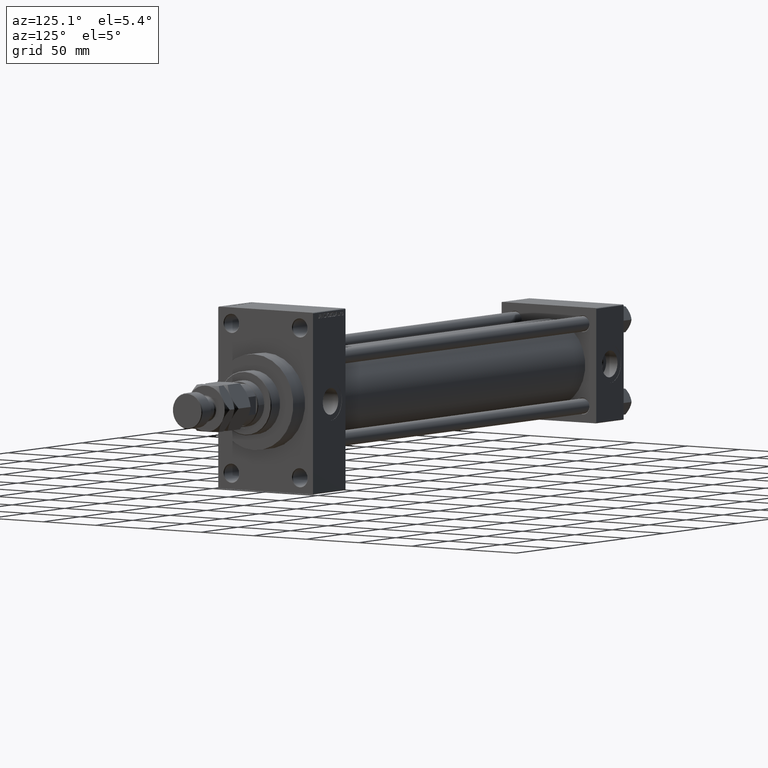
[diagram: clean part render]
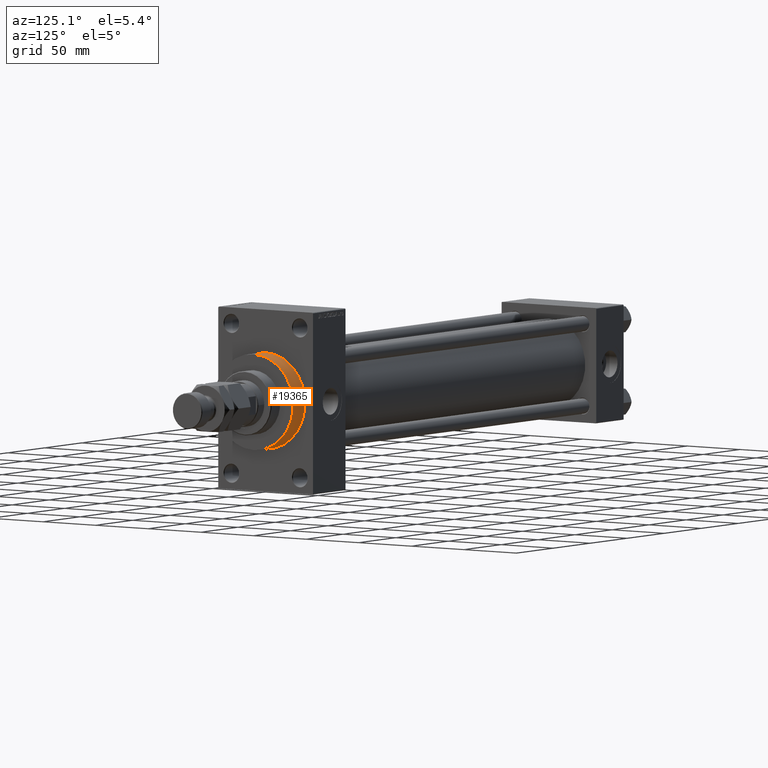
[diagram: same view with one face highlighted and labeled with its STEP entity id]
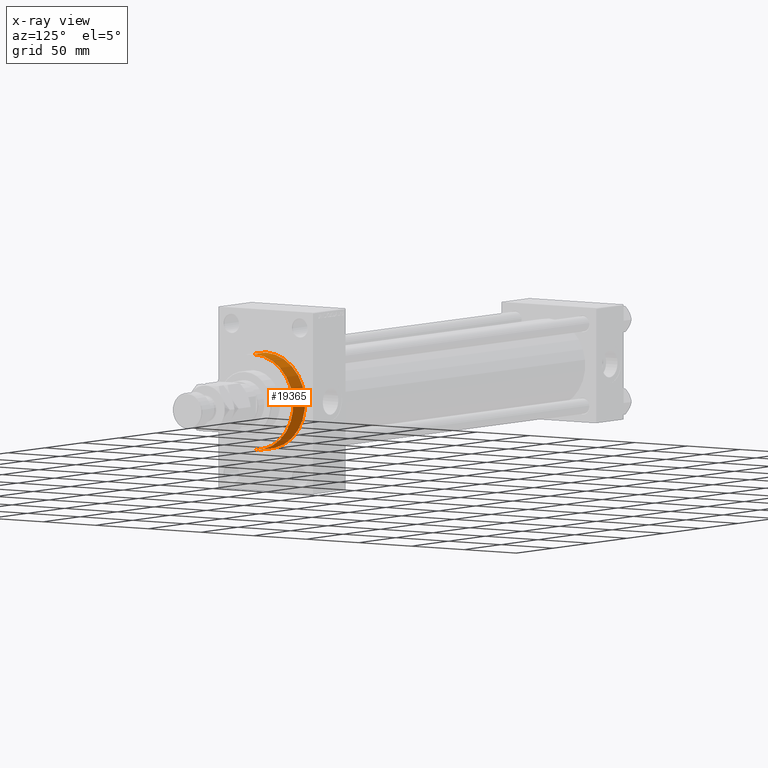
[diagram: x-ray of the same camera — body ghosted, the highlighted face saturated]
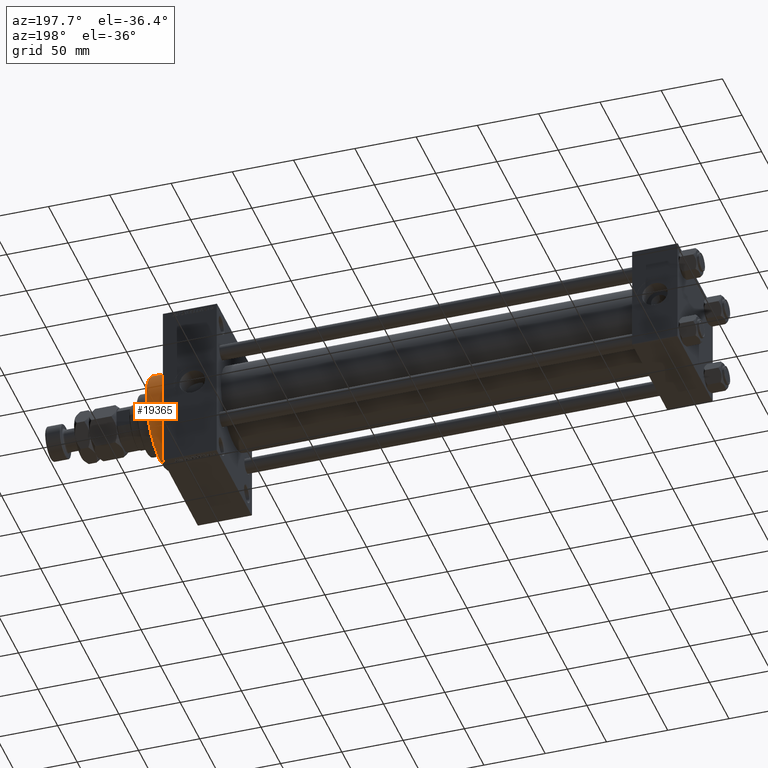
[diagram: same view with one face highlighted and labeled with its STEP entity id]
A machine part, auxiliary view. The second image highlights one B-rep face of the part: STEP entity #19365.
The next image is the same camera in x-ray: the body ghosted, the highlighted face saturated — about 0% of this face is hidden behind the body in this view.
A second angle (auxiliary view) of the same face is appended — the face is thin or edge-on in the first view.
In plain terms, the highlighted cylindrical surface (partial cylindrical patch) has radius 37.5 mm, axis along (-1, -0, -0).
Its self-contained STEP definition (entity closure, byte-faithful):
#227 = DIRECTION ( 'NONE',  ( 1.000000000000000000, 0.000000000000000000, 0.000000000000000000 ) ) ;
#685 = EDGE_CURVE ( 'NONE', #32410, #24427, #22771, .T. ) ;
#891 = EDGE_CURVE ( 'NONE', #32410, #38043, #3953, .T. ) ;
#1475 = ORIENTED_EDGE ( 'NONE', *, *, #13464, .T. ) ;
#3953 = LINE ( 'NONE', #48041, #17058 ) ;
#4077 = CYLINDRICAL_SURFACE ( 'NONE', #50398, 37.50000000000000711 ) ;
#4306 = DIRECTION ( 'NONE',  ( 1.000000000000000000, 0.000000000000000000, 0.000000000000000000 ) ) ;
#8182 = CARTESIAN_POINT ( 'NONE',  ( 436.0000000000000000, 0.000000000000000000, 0.000000000000000000 ) ) ;
#8702 = CARTESIAN_POINT ( 'NONE',  ( 420.0000000000000000, 0.000000000000000000, 37.50000000000000711 ) ) ;
#12595 = DIRECTION ( 'NONE',  ( 0.000000000000000000, 0.000000000000000000, 1.000000000000000000 ) ) ;
#13464 = EDGE_CURVE ( 'NONE', #38043, #21650, #29747, .T. ) ;
#13615 = DIRECTION ( 'NONE',  ( -1.000000000000000000, -0.000000000000000000, -0.000000000000000000 ) ) ;
#15673 = FACE_OUTER_BOUND ( 'NONE', #50596, .T. ) ;
#17058 = VECTOR ( 'NONE', #40053, 1000.000000000000000 ) ;
#19365 = ADVANCED_FACE ( 'NONE', ( #15673 ), #4077, .T. ) ;
#19798 = CARTESIAN_POINT ( 'NONE',  ( 436.0000000000000000, 0.000000000000000000, 0.000000000000000000 ) ) ;
#21603 = LINE ( 'NONE', #49929, #48808 ) ;
#21650 = VERTEX_POINT ( 'NONE', #8702 ) ;
#22771 = CIRCLE ( 'NONE', #35163, 37.50000000000000711 ) ;
#24427 = VERTEX_POINT ( 'NONE', #37812 ) ;
#29747 = CIRCLE ( 'NONE', #41268, 37.50000000000000711 ) ;
#32410 = VERTEX_POINT ( 'NONE', #43991 ) ;
#35163 = AXIS2_PLACEMENT_3D ( 'NONE', #8182, #4306, #35779 ) ;
#35552 = DIRECTION ( 'NONE',  ( -1.000000000000000000, -0.000000000000000000, -0.000000000000000000 ) ) ;
#35779 = DIRECTION ( 'NONE',  ( 0.000000000000000000, 0.000000000000000000, -1.000000000000000000 ) ) ;
#35790 = ORIENTED_EDGE ( 'NONE', *, *, #891, .T. ) ;
#36338 = DIRECTION ( 'NONE',  ( 0.000000000000000000, 0.000000000000000000, -1.000000000000000000 ) ) ;
#37307 = ORIENTED_EDGE ( 'NONE', *, *, #685, .F. ) ;
#37812 = CARTESIAN_POINT ( 'NONE',  ( 436.0000000000000000, 0.000000000000000000, 37.50000000000000711 ) ) ;
#38043 = VERTEX_POINT ( 'NONE', #44280 ) ;
#40053 = DIRECTION ( 'NONE',  ( -1.000000000000000000, -0.000000000000000000, -0.000000000000000000 ) ) ;
#41268 = AXIS2_PLACEMENT_3D ( 'NONE', #43551, #227, #36338 ) ;
#43551 = CARTESIAN_POINT ( 'NONE',  ( 420.0000000000000000, 0.000000000000000000, 0.000000000000000000 ) ) ;
#43991 = CARTESIAN_POINT ( 'NONE',  ( 436.0000000000000000, 4.592425496802575156E-15, -37.50000000000000711 ) ) ;
#44280 = CARTESIAN_POINT ( 'NONE',  ( 420.0000000000000000, 4.592425496802575156E-15, -37.50000000000000711 ) ) ;
#45615 = ORIENTED_EDGE ( 'NONE', *, *, #46255, .F. ) ;
#46255 = EDGE_CURVE ( 'NONE', #24427, #21650, #21603, .T. ) ;
#48041 = CARTESIAN_POINT ( 'NONE',  ( 436.0000000000000000, 4.592425496802575156E-15, -37.50000000000000711 ) ) ;
#48808 = VECTOR ( 'NONE', #13615, 1000.000000000000000 ) ;
#49929 = CARTESIAN_POINT ( 'NONE',  ( 436.0000000000000000, 0.000000000000000000, 37.50000000000000711 ) ) ;
#50398 = AXIS2_PLACEMENT_3D ( 'NONE', #19798, #35552, #12595 ) ;
#50596 = EDGE_LOOP ( 'NONE', ( #37307, #35790, #1475, #45615 ) ) ;